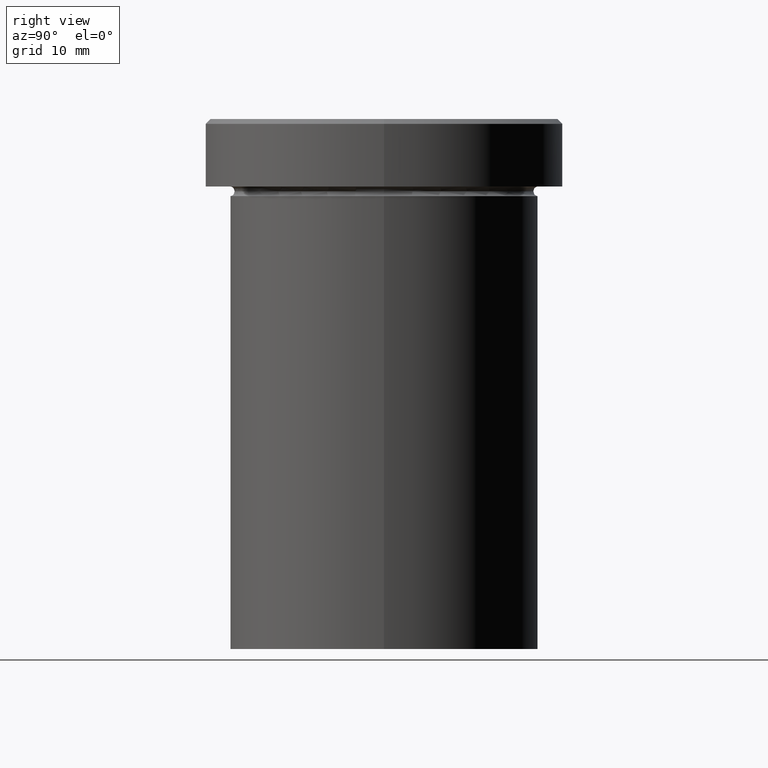
[diagram: clean part render]
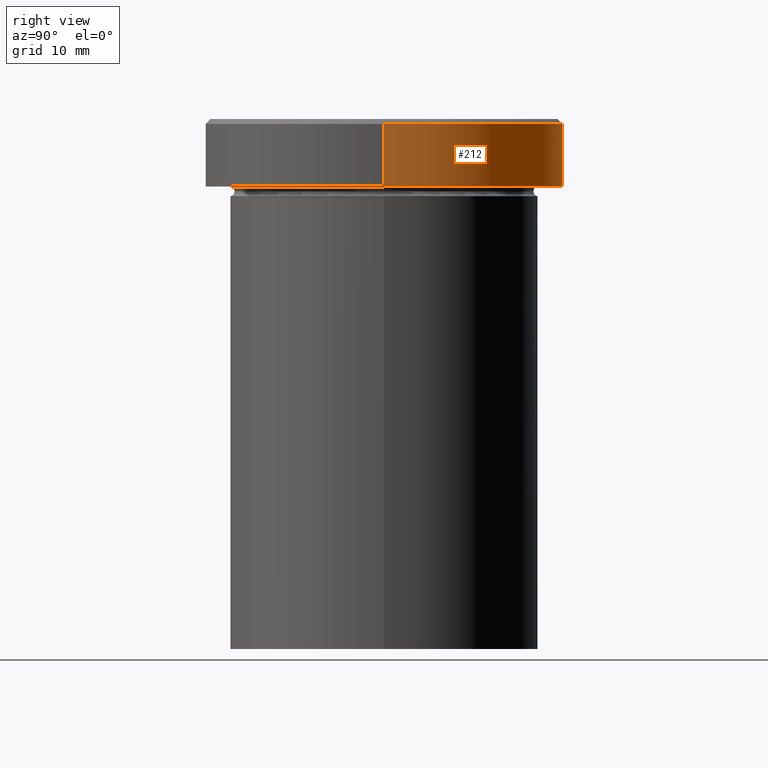
[diagram: same view with one face highlighted and labeled with its STEP entity id]
A machine part, right view. The second image highlights one B-rep face of the part: STEP entity #212.
In plain terms, the highlighted cylindrical surface (partial cylindrical patch) has radius 18.5 mm, axis along (-0, -0, 1).
Its self-contained STEP definition (entity closure, byte-faithful):
#16 = CARTESIAN_POINT ( 'NONE',  ( -18.50000000000000000, 2.265596578422603396E-15, -6.999999999999999112 ) ) ;
#25 = DIRECTION ( 'NONE',  ( 1.000000000000000000, 0.000000000000000000, 0.000000000000000000 ) ) ;
#46 = LINE ( 'NONE', #141, #346 ) ;
#80 = ORIENTED_EDGE ( 'NONE', *, *, #175, .T. ) ;
#81 = EDGE_CURVE ( 'NONE', #380, #322, #149, .T. ) ;
#83 = CARTESIAN_POINT ( 'NONE',  ( 0.000000000000000000, 0.000000000000000000, -6.999999999999999112 ) ) ;
#88 = DIRECTION ( 'NONE',  ( 1.000000000000000000, 0.000000000000000000, 0.000000000000000000 ) ) ;
#91 = CIRCLE ( 'NONE', #331, 18.50000000000000000 ) ;
#102 = EDGE_CURVE ( 'NONE', #407, #338, #91, .T. ) ;
#135 = CARTESIAN_POINT ( 'NONE',  ( 18.50000000000000000, 0.000000000000000000, -6.999999999999999112 ) ) ;
#141 = CARTESIAN_POINT ( 'NONE',  ( -18.50000000000000000, 2.265596578422603396E-15, 0.000000000000000000 ) ) ;
#149 = CIRCLE ( 'NONE', #308, 18.50000000000000000 ) ;
#151 = EDGE_CURVE ( 'NONE', #380, #338, #286, .T. ) ;
#156 = DIRECTION ( 'NONE',  ( -0.000000000000000000, -0.000000000000000000, 1.000000000000000000 ) ) ;
#157 = ORIENTED_EDGE ( 'NONE', *, *, #102, .T. ) ;
#165 = DIRECTION ( 'NONE',  ( 0.000000000000000000, 0.000000000000000000, -1.000000000000000000 ) ) ;
#175 = EDGE_CURVE ( 'NONE', #322, #407, #46, .T. ) ;
#189 = CARTESIAN_POINT ( 'NONE',  ( 0.000000000000000000, 0.000000000000000000, -0.5000000000000143219 ) ) ;
#212 = ADVANCED_FACE ( 'NONE', ( #319 ), #217, .T. ) ;
#215 = ORIENTED_EDGE ( 'NONE', *, *, #81, .T. ) ;
#217 = CYLINDRICAL_SURFACE ( 'NONE', #291, 18.50000000000000000 ) ;
#223 = CARTESIAN_POINT ( 'NONE',  ( 18.50000000000000000, 0.000000000000000000, -0.5000000000000143219 ) ) ;
#267 = DIRECTION ( 'NONE',  ( -0.000000000000000000, -0.000000000000000000, 1.000000000000000000 ) ) ;
#283 = DIRECTION ( 'NONE',  ( 1.000000000000000000, 0.000000000000000000, 0.000000000000000000 ) ) ;
#286 = LINE ( 'NONE', #391, #321 ) ;
#291 = AXIS2_PLACEMENT_3D ( 'NONE', #378, #352, #283 ) ;
#308 = AXIS2_PLACEMENT_3D ( 'NONE', #83, #156, #88 ) ;
#319 = FACE_OUTER_BOUND ( 'NONE', #374, .T. ) ;
#321 = VECTOR ( 'NONE', #267, 1000.000000000000000 ) ;
#322 = VERTEX_POINT ( 'NONE', #16 ) ;
#331 = AXIS2_PLACEMENT_3D ( 'NONE', #189, #165, #25 ) ;
#338 = VERTEX_POINT ( 'NONE', #223 ) ;
#339 = CARTESIAN_POINT ( 'NONE',  ( -18.50000000000000000, 2.265596578422603396E-15, -0.5000000000000143219 ) ) ;
#346 = VECTOR ( 'NONE', #362, 1000.000000000000000 ) ;
#351 = ORIENTED_EDGE ( 'NONE', *, *, #151, .F. ) ;
#352 = DIRECTION ( 'NONE',  ( -0.000000000000000000, -0.000000000000000000, 1.000000000000000000 ) ) ;
#362 = DIRECTION ( 'NONE',  ( -0.000000000000000000, -0.000000000000000000, 1.000000000000000000 ) ) ;
#374 = EDGE_LOOP ( 'NONE', ( #215, #80, #157, #351 ) ) ;
#378 = CARTESIAN_POINT ( 'NONE',  ( 0.000000000000000000, 0.000000000000000000, 0.000000000000000000 ) ) ;
#380 = VERTEX_POINT ( 'NONE', #135 ) ;
#391 = CARTESIAN_POINT ( 'NONE',  ( 18.50000000000000000, 0.000000000000000000, 0.000000000000000000 ) ) ;
#407 = VERTEX_POINT ( 'NONE', #339 ) ;